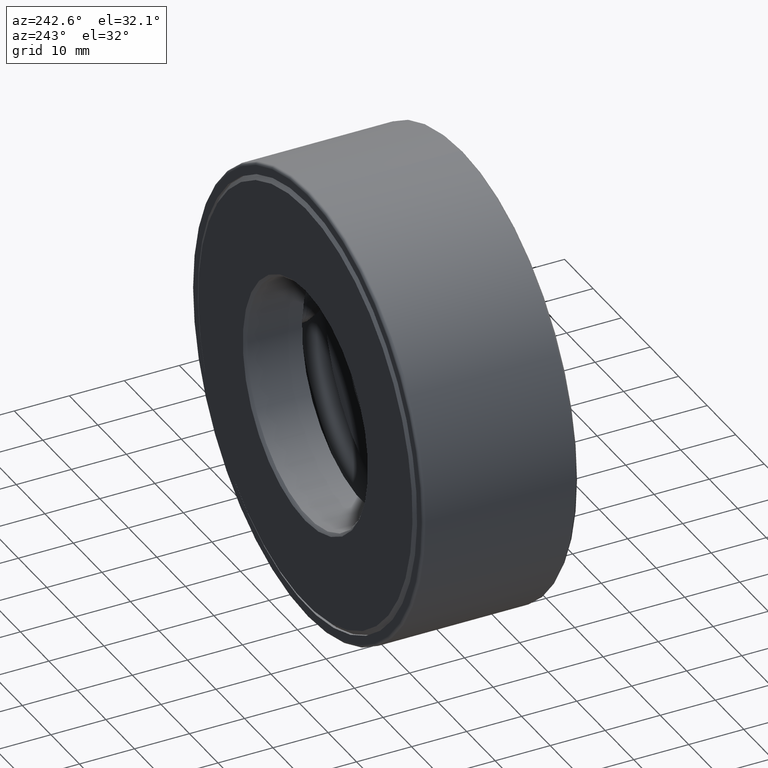
[diagram: clean part render]
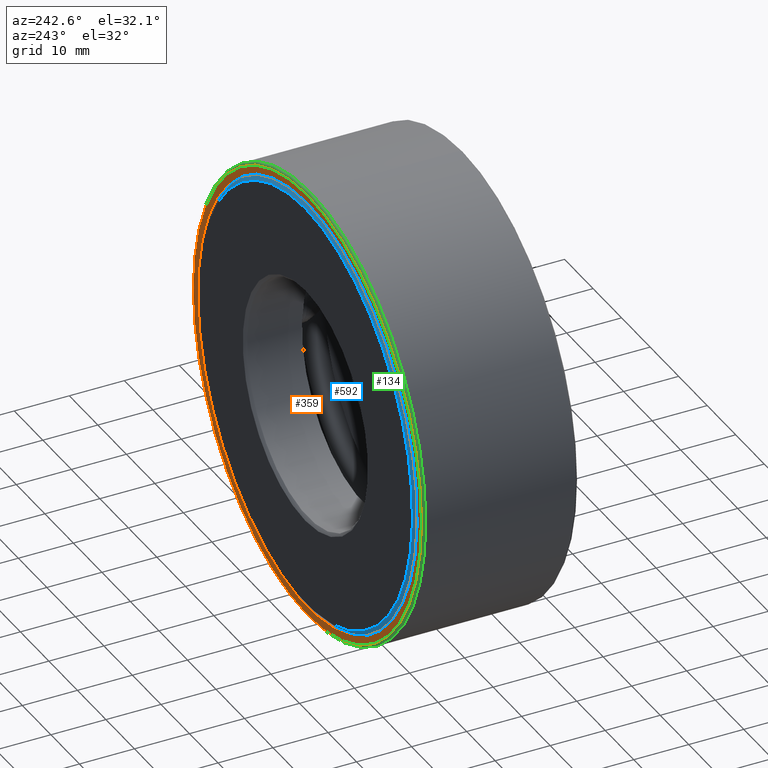
[diagram: same view with three faces highlighted in distinct colors, each labeled with its STEP entity id]
A machine part, auxiliary view with three faces highlighted in distinct colors.
Their STEP definitions:

[orange] entity #359 — the highlighted planar face has unit normal (0, -1, 0).
#13 = EDGE_CURVE ( 'NONE', #544, #544, #435, .T. ) ;
#25 = CARTESIAN_POINT ( 'NONE',  ( 0.0000000000000000000, 1.109999999999999900, 0.0000000000000000000 ) ) ;
#53 = AXIS2_PLACEMENT_3D ( 'NONE', #192, #530, #106 ) ;
#55 = CARTESIAN_POINT ( 'NONE',  ( 0.0000000000000000000, 1.109999999999999900, 1.513749999999999900 ) ) ;
#88 = EDGE_CURVE ( 'NONE', #168, #168, #252, .T. ) ;
#106 = DIRECTION ( 'NONE',  ( 0.0000000000000000000, 0.0000000000000000000, 1.000000000000000000 ) ) ;
#142 = CARTESIAN_POINT ( 'NONE',  ( 0.0000000000000000000, 1.109999999999999900, 1.573749999999999800 ) ) ;
#168 = VERTEX_POINT ( 'NONE', #142 ) ;
#192 = CARTESIAN_POINT ( 'NONE',  ( 0.0000000000000000000, 1.109999999999999900, 0.0000000000000000000 ) ) ;
#252 = CIRCLE ( 'NONE', #582, 1.573749999999999800 ) ;
#286 = ORIENTED_EDGE ( 'NONE', *, *, #88, .T. ) ;
#297 = AXIS2_PLACEMENT_3D ( 'NONE', #360, #447, #404 ) ;
#305 = DIRECTION ( 'NONE',  ( -0.0000000000000000000, 1.000000000000000000, -0.0000000000000000000 ) ) ;
#309 = ORIENTED_EDGE ( 'NONE', *, *, #13, .F. ) ;
#353 = FACE_OUTER_BOUND ( 'NONE', #416, .T. ) ;
#359 = ADVANCED_FACE ( 'NONE', ( #570, #353 ), #591, .F. ) ;
#360 = CARTESIAN_POINT ( 'NONE',  ( 0.0000000000000000000, 1.109999999999999900, 0.0000000000000000000 ) ) ;
#404 = DIRECTION ( 'NONE',  ( 0.0000000000000000000, -0.0000000000000000000, -1.000000000000000000 ) ) ;
#416 = EDGE_LOOP ( 'NONE', ( #286 ) ) ;
#435 = CIRCLE ( 'NONE', #53, 1.513749999999999900 ) ;
#447 = DIRECTION ( 'NONE',  ( 0.0000000000000000000, -1.000000000000000000, 0.0000000000000000000 ) ) ;
#452 = DIRECTION ( 'NONE',  ( 0.0000000000000000000, 0.0000000000000000000, 1.000000000000000000 ) ) ;
#530 = DIRECTION ( 'NONE',  ( -0.0000000000000000000, 1.000000000000000000, -0.0000000000000000000 ) ) ;
#544 = VERTEX_POINT ( 'NONE', #55 ) ;
#569 = EDGE_LOOP ( 'NONE', ( #309 ) ) ;
#570 = FACE_BOUND ( 'NONE', #569, .T. ) ;
#582 = AXIS2_PLACEMENT_3D ( 'NONE', #25, #305, #452 ) ;
#591 = PLANE ( 'NONE',  #297 ) ;

[blue] entity #592 — the highlighted conical surface has half-angle 45 deg.
#31 = CARTESIAN_POINT ( 'NONE',  ( 0.0000000000000000000, 1.125000000000000000, 0.0000000000000000000 ) ) ;
#43 = VERTEX_POINT ( 'NONE', #384 ) ;
#50 = CIRCLE ( 'NONE', #489, 1.566749999999999600 ) ;
#60 = DIRECTION ( 'NONE',  ( 0.0000000000000000000, 0.0000000000000000000, 1.000000000000000000 ) ) ;
#85 = VERTEX_POINT ( 'NONE', #196 ) ;
#87 = CIRCLE ( 'NONE', #562, 1.478749999999999600 ) ;
#141 = EDGE_LOOP ( 'NONE', ( #246 ) ) ;
#167 = ORIENTED_EDGE ( 'NONE', *, *, #512, .T. ) ;
#184 = CARTESIAN_POINT ( 'NONE',  ( 0.0000000000000000000, 1.125000000000000000, 0.0000000000000000000 ) ) ;
#189 = DIRECTION ( 'NONE',  ( 0.0000000000000000000, 0.0000000000000000000, -1.000000000000000000 ) ) ;
#196 = CARTESIAN_POINT ( 'NONE',  ( 0.0000000000000000000, 1.037000000000000400, 1.566749999999999600 ) ) ;
#213 = FACE_BOUND ( 'NONE', #141, .T. ) ;
#232 = CARTESIAN_POINT ( 'NONE',  ( 0.0000000000000000000, 1.037000000000000400, 0.0000000000000000000 ) ) ;
#246 = ORIENTED_EDGE ( 'NONE', *, *, #304, .F. ) ;
#304 = EDGE_CURVE ( 'NONE', #43, #43, #87, .T. ) ;
#325 = DIRECTION ( 'NONE',  ( -0.0000000000000000000, 1.000000000000000000, -0.0000000000000000000 ) ) ;
#364 = FACE_OUTER_BOUND ( 'NONE', #563, .T. ) ;
#381 = DIRECTION ( 'NONE',  ( 0.0000000000000000000, -1.000000000000000000, 0.0000000000000000000 ) ) ;
#384 = CARTESIAN_POINT ( 'NONE',  ( 0.0000000000000000000, 1.125000000000000000, 1.478749999999999600 ) ) ;
#389 = AXIS2_PLACEMENT_3D ( 'NONE', #184, #381, #189 ) ;
#453 = DIRECTION ( 'NONE',  ( -0.0000000000000000000, 1.000000000000000000, -0.0000000000000000000 ) ) ;
#489 = AXIS2_PLACEMENT_3D ( 'NONE', #232, #325, #60 ) ;
#501 = CONICAL_SURFACE ( 'NONE', #389, 1.478749999999999600, 0.7853981633974498300 ) ;
#504 = DIRECTION ( 'NONE',  ( 0.0000000000000000000, 0.0000000000000000000, 1.000000000000000000 ) ) ;
#512 = EDGE_CURVE ( 'NONE', #85, #85, #50, .T. ) ;
#562 = AXIS2_PLACEMENT_3D ( 'NONE', #31, #453, #504 ) ;
#563 = EDGE_LOOP ( 'NONE', ( #167 ) ) ;
#592 = ADVANCED_FACE ( 'NONE', ( #364, #213 ), #501, .T. ) ;

[green] entity #134 — the highlighted toroidal blend (fillet) surface has major radius 39.9732 mm and minor (blend) radius 0.508 mm.
#25 = CARTESIAN_POINT ( 'NONE',  ( 0.0000000000000000000, 1.109999999999999900, 0.0000000000000000000 ) ) ;
#40 = DIRECTION ( 'NONE',  ( 0.0000000000000000000, 0.0000000000000000000, 1.000000000000000000 ) ) ;
#65 = VERTEX_POINT ( 'NONE', #154 ) ;
#88 = EDGE_CURVE ( 'NONE', #168, #168, #252, .T. ) ;
#115 = TOROIDAL_SURFACE ( 'NONE', #153, 1.573749999999999800, 0.02000000000000005900 ) ;
#134 = ADVANCED_FACE ( 'NONE', ( #385, #604 ), #115, .T. ) ;
#142 = CARTESIAN_POINT ( 'NONE',  ( 0.0000000000000000000, 1.109999999999999900, 1.573749999999999800 ) ) ;
#153 = AXIS2_PLACEMENT_3D ( 'NONE', #403, #539, #301 ) ;
#154 = CARTESIAN_POINT ( 'NONE',  ( 0.0000000000000000000, 1.089999999999999900, 1.593750000000000000 ) ) ;
#166 = DIRECTION ( 'NONE',  ( -0.0000000000000000000, 1.000000000000000000, -0.0000000000000000000 ) ) ;
#168 = VERTEX_POINT ( 'NONE', #142 ) ;
#187 = ORIENTED_EDGE ( 'NONE', *, *, #313, .T. ) ;
#252 = CIRCLE ( 'NONE', #582, 1.573749999999999800 ) ;
#301 = DIRECTION ( 'NONE',  ( 0.0000000000000000000, 0.0000000000000000000, 1.000000000000000000 ) ) ;
#305 = DIRECTION ( 'NONE',  ( -0.0000000000000000000, 1.000000000000000000, -0.0000000000000000000 ) ) ;
#313 = EDGE_CURVE ( 'NONE', #65, #65, #448, .T. ) ;
#366 = CARTESIAN_POINT ( 'NONE',  ( 0.0000000000000000000, 1.089999999999999900, 0.0000000000000000000 ) ) ;
#385 = FACE_OUTER_BOUND ( 'NONE', #578, .T. ) ;
#397 = AXIS2_PLACEMENT_3D ( 'NONE', #366, #166, #40 ) ;
#403 = CARTESIAN_POINT ( 'NONE',  ( 0.0000000000000000000, 1.089999999999999900, 0.0000000000000000000 ) ) ;
#421 = ORIENTED_EDGE ( 'NONE', *, *, #88, .F. ) ;
#428 = EDGE_LOOP ( 'NONE', ( #187 ) ) ;
#448 = CIRCLE ( 'NONE', #397, 1.593750000000000000 ) ;
#452 = DIRECTION ( 'NONE',  ( 0.0000000000000000000, 0.0000000000000000000, 1.000000000000000000 ) ) ;
#539 = DIRECTION ( 'NONE',  ( -0.0000000000000000000, 1.000000000000000000, -0.0000000000000000000 ) ) ;
#578 = EDGE_LOOP ( 'NONE', ( #421 ) ) ;
#582 = AXIS2_PLACEMENT_3D ( 'NONE', #25, #305, #452 ) ;
#604 = FACE_OUTER_BOUND ( 'NONE', #428, .T. ) ;